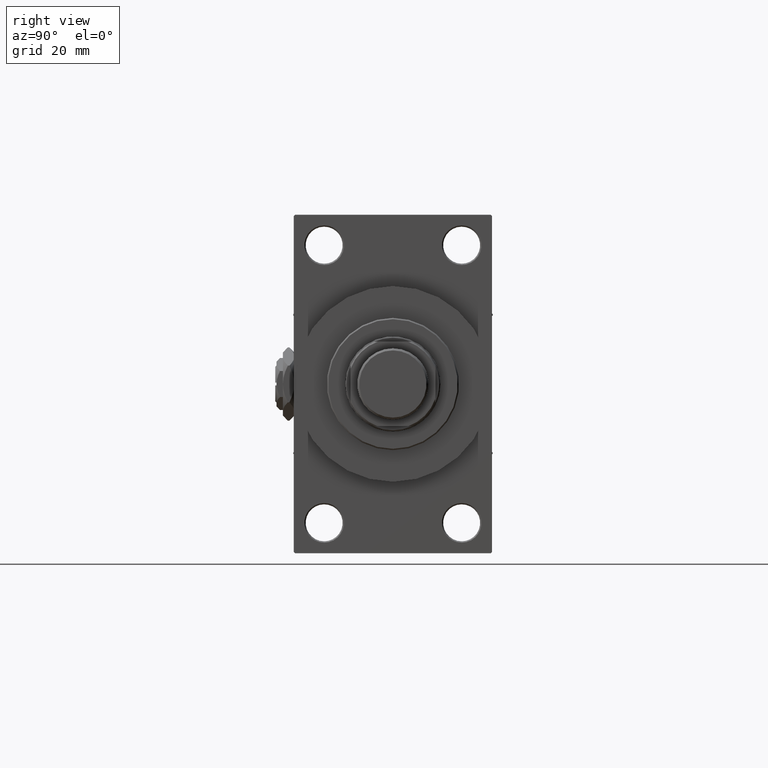
[diagram: clean part render]
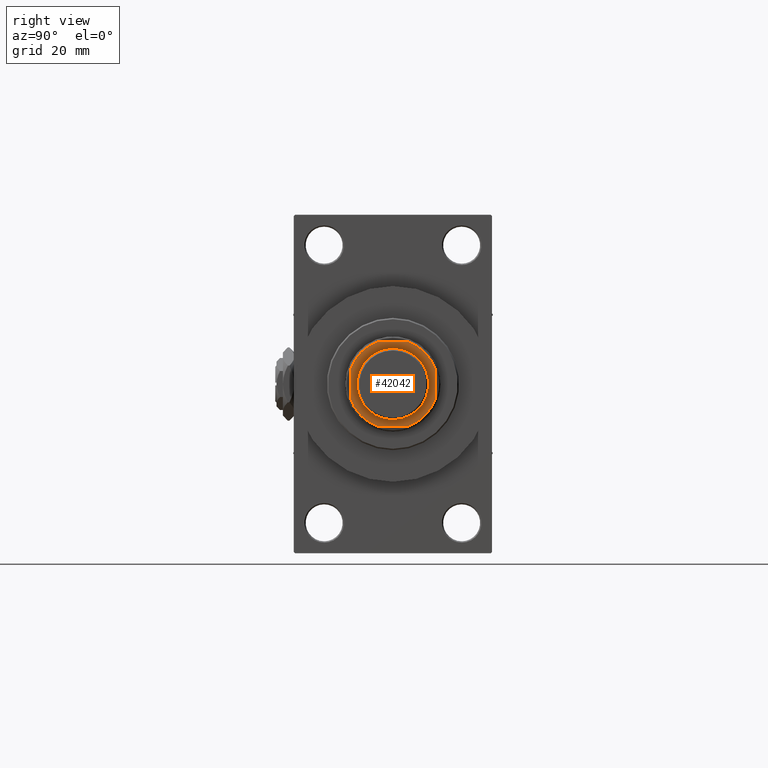
[diagram: same view with one face highlighted and labeled with its STEP entity id]
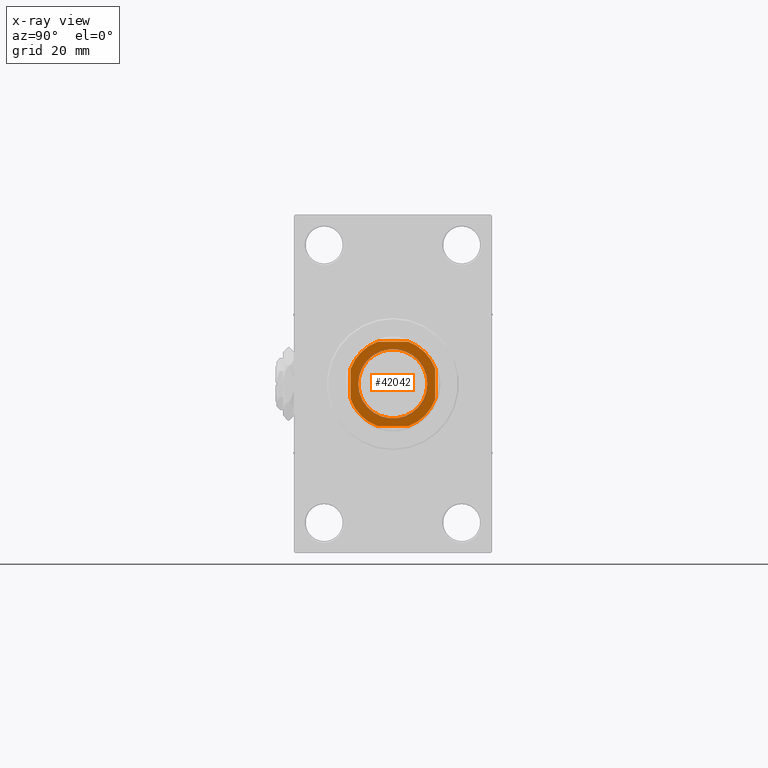
[diagram: x-ray of the same camera — body ghosted, the highlighted face saturated]
A machine part, right view. The second image highlights one B-rep face of the part: STEP entity #42042.
The next image is the same camera in x-ray: the body ghosted, the highlighted face saturated — about 11% of this face is hidden behind the body in this view.
In plain terms, the highlighted planar face has unit normal (1, 0, 0).
Its self-contained STEP definition (entity closure, byte-faithful):
#64 = CARTESIAN_POINT ( 'NONE',  ( -5.744562646538084572, 16.00000000000000000, 142.0000000000000284 ) ) ;
#850 = CARTESIAN_POINT ( 'NONE',  ( 0.000000000000000000, 0.000000000000000000, 142.0000000000000284 ) ) ;
#1281 = CARTESIAN_POINT ( 'NONE',  ( 0.000000000000000000, 0.000000000000000000, 142.0000000000000284 ) ) ;
#2486 = LINE ( 'NONE', #9057, #12441 ) ;
#2992 = DIRECTION ( 'NONE',  ( 0.000000000000000000, -1.000000000000000000, 0.000000000000000000 ) ) ;
#3475 = CARTESIAN_POINT ( 'NONE',  ( 0.000000000000000000, 0.000000000000000000, 142.0000000000000284 ) ) ;
#5814 = EDGE_CURVE ( 'NONE', #7240, #29048, #19511, .T. ) ;
#6049 = ORIENTED_EDGE ( 'NONE', *, *, #10334, .T. ) ;
#6926 = FACE_BOUND ( 'NONE', #9669, .T. ) ;
#7240 = VERTEX_POINT ( 'NONE', #35215 ) ;
#7481 = VECTOR ( 'NONE', #40549, 1000.000000000000000 ) ;
#7717 = DIRECTION ( 'NONE',  ( -0.000000000000000000, 0.000000000000000000, 1.000000000000000000 ) ) ;
#9057 = CARTESIAN_POINT ( 'NONE',  ( -16.00000000000000000, 16.00000000000000000, 142.0000000000000284 ) ) ;
#9669 = EDGE_LOOP ( 'NONE', ( #23970, #41769 ) ) ;
#10334 = EDGE_CURVE ( 'NONE', #48113, #13094, #2486, .T. ) ;
#10508 = CARTESIAN_POINT ( 'NONE',  ( -16.00000000000000000, 5.744562646538085460, 142.0000000000000284 ) ) ;
#11039 = DIRECTION ( 'NONE',  ( -0.000000000000000000, 0.000000000000000000, 1.000000000000000000 ) ) ;
#11550 = VERTEX_POINT ( 'NONE', #20064 ) ;
#12414 = EDGE_CURVE ( 'NONE', #13094, #11550, #18152, .T. ) ;
#12441 = VECTOR ( 'NONE', #2992, 1000.000000000000000 ) ;
#12964 = ORIENTED_EDGE ( 'NONE', *, *, #12414, .T. ) ;
#13094 = VERTEX_POINT ( 'NONE', #33559 ) ;
#14491 = CARTESIAN_POINT ( 'NONE',  ( 0.000000000000000000, 0.000000000000000000, 142.0000000000000284 ) ) ;
#15445 = DIRECTION ( 'NONE',  ( 1.000000000000000000, 0.000000000000000000, 0.000000000000000000 ) ) ;
#16060 = CARTESIAN_POINT ( 'NONE',  ( 13.05000000000000604, 0.000000000000000000, 142.0000000000000284 ) ) ;
#16098 = CARTESIAN_POINT ( 'NONE',  ( 0.000000000000000000, 0.000000000000000000, 142.0000000000000284 ) ) ;
#16664 = DIRECTION ( 'NONE',  ( 1.000000000000000000, 0.000000000000000000, 0.000000000000000000 ) ) ;
#17636 = EDGE_CURVE ( 'NONE', #36327, #29372, #32160, .T. ) ;
#17745 = CARTESIAN_POINT ( 'NONE',  ( 16.00000000000000000, -5.744562646538022399, 142.0000000000000284 ) ) ;
#18057 = ORIENTED_EDGE ( 'NONE', *, *, #30554, .T. ) ;
#18152 = CIRCLE ( 'NONE', #47866, 16.99999999999999645 ) ;
#18298 = VECTOR ( 'NONE', #31910, 1000.000000000000000 ) ;
#19196 = AXIS2_PLACEMENT_3D ( 'NONE', #31530, #34808, #15445 ) ;
#19506 = CARTESIAN_POINT ( 'NONE',  ( 5.744562646538032169, -15.99999999999999645, 142.0000000000000284 ) ) ;
#19511 = CIRCLE ( 'NONE', #32336, 13.05000000000000604 ) ;
#20012 = VERTEX_POINT ( 'NONE', #19506 ) ;
#20064 = CARTESIAN_POINT ( 'NONE',  ( -5.744562646538033057, -15.99999999999999645, 142.0000000000000284 ) ) ;
#21259 = CARTESIAN_POINT ( 'NONE',  ( 16.00000000000000000, 5.744562646538024175, 142.0000000000000284 ) ) ;
#21589 = LINE ( 'NONE', #33150, #24236 ) ;
#22238 = EDGE_LOOP ( 'NONE', ( #49172, #47779, #25889, #25817, #6049, #12964, #18057, #48061 ) ) ;
#23970 = ORIENTED_EDGE ( 'NONE', *, *, #46404, .T. ) ;
#24236 = VECTOR ( 'NONE', #48970, 1000.000000000000000 ) ;
#24734 = LINE ( 'NONE', #40297, #7481 ) ;
#25121 = CARTESIAN_POINT ( 'NONE',  ( -16.00000000000000000, 16.00000000000000000, 142.0000000000000284 ) ) ;
#25568 = DIRECTION ( 'NONE',  ( -0.000000000000000000, 0.000000000000000000, 1.000000000000000000 ) ) ;
#25817 = ORIENTED_EDGE ( 'NONE', *, *, #42552, .T. ) ;
#25889 = ORIENTED_EDGE ( 'NONE', *, *, #17636, .T. ) ;
#26089 = EDGE_CURVE ( 'NONE', #30236, #31843, #21589, .T. ) ;
#27980 = DIRECTION ( 'NONE',  ( -0.000000000000000000, 0.000000000000000000, 1.000000000000000000 ) ) ;
#28722 = AXIS2_PLACEMENT_3D ( 'NONE', #1281, #27980, #16664 ) ;
#29048 = VERTEX_POINT ( 'NONE', #16060 ) ;
#29372 = VERTEX_POINT ( 'NONE', #64 ) ;
#29720 = AXIS2_PLACEMENT_3D ( 'NONE', #42158, #7717, #38398 ) ;
#30236 = VERTEX_POINT ( 'NONE', #17745 ) ;
#30554 = EDGE_CURVE ( 'NONE', #11550, #20012, #24734, .T. ) ;
#31425 = DIRECTION ( 'NONE',  ( 1.000000000000000000, 0.000000000000000000, 0.000000000000000000 ) ) ;
#31530 = CARTESIAN_POINT ( 'NONE',  ( 0.000000000000000000, 0.000000000000000000, 142.0000000000000284 ) ) ;
#31843 = VERTEX_POINT ( 'NONE', #21259 ) ;
#31910 = DIRECTION ( 'NONE',  ( -1.000000000000000000, -0.000000000000000000, -0.000000000000000000 ) ) ;
#32160 = LINE ( 'NONE', #25121, #18298 ) ;
#32336 = AXIS2_PLACEMENT_3D ( 'NONE', #850, #39336, #39579 ) ;
#33050 = CARTESIAN_POINT ( 'NONE',  ( 5.744562646538022399, 16.00000000000000000, 142.0000000000000284 ) ) ;
#33150 = CARTESIAN_POINT ( 'NONE',  ( 15.99999999999999645, 16.00000000000000000, 142.0000000000000284 ) ) ;
#33559 = CARTESIAN_POINT ( 'NONE',  ( -16.00000000000000000, -5.744562646538022399, 142.0000000000000284 ) ) ;
#33596 = PLANE ( 'NONE',  #46324 ) ;
#34082 = DIRECTION ( 'NONE',  ( 1.000000000000000000, 0.000000000000000000, 0.000000000000000000 ) ) ;
#34628 = EDGE_CURVE ( 'NONE', #20012, #30236, #46181, .T. ) ;
#34808 = DIRECTION ( 'NONE',  ( 0.000000000000000000, -0.000000000000000000, -1.000000000000000000 ) ) ;
#34969 = AXIS2_PLACEMENT_3D ( 'NONE', #16098, #46515, #31425 ) ;
#35139 = CIRCLE ( 'NONE', #28722, 17.00000000000001776 ) ;
#35215 = CARTESIAN_POINT ( 'NONE',  ( -13.05000000000000604, 1.598164072887296760E-15, 142.0000000000000284 ) ) ;
#36327 = VERTEX_POINT ( 'NONE', #33050 ) ;
#38398 = DIRECTION ( 'NONE',  ( 1.000000000000000000, 0.000000000000000000, 0.000000000000000000 ) ) ;
#39286 = CIRCLE ( 'NONE', #19196, 13.05000000000000604 ) ;
#39336 = DIRECTION ( 'NONE',  ( 0.000000000000000000, -0.000000000000000000, -1.000000000000000000 ) ) ;
#39579 = DIRECTION ( 'NONE',  ( 1.000000000000000000, 0.000000000000000000, 0.000000000000000000 ) ) ;
#40297 = CARTESIAN_POINT ( 'NONE',  ( -16.00000000000000000, -15.99999999999999645, 142.0000000000000284 ) ) ;
#40549 = DIRECTION ( 'NONE',  ( 1.000000000000000000, 0.000000000000000000, 0.000000000000000000 ) ) ;
#41754 = CIRCLE ( 'NONE', #29720, 16.99999999999999645 ) ;
#41769 = ORIENTED_EDGE ( 'NONE', *, *, #5814, .T. ) ;
#42042 = ADVANCED_FACE ( 'NONE', ( #6926, #44908 ), #33596, .T. ) ;
#42158 = CARTESIAN_POINT ( 'NONE',  ( 0.000000000000000000, 0.000000000000000000, 142.0000000000000284 ) ) ;
#42552 = EDGE_CURVE ( 'NONE', #29372, #48113, #35139, .T. ) ;
#44908 = FACE_OUTER_BOUND ( 'NONE', #22238, .T. ) ;
#46181 = CIRCLE ( 'NONE', #34969, 16.99999999999999645 ) ;
#46215 = DIRECTION ( 'NONE',  ( 1.000000000000000000, 0.000000000000000000, 0.000000000000000000 ) ) ;
#46324 = AXIS2_PLACEMENT_3D ( 'NONE', #14491, #25568, #34082 ) ;
#46404 = EDGE_CURVE ( 'NONE', #29048, #7240, #39286, .T. ) ;
#46515 = DIRECTION ( 'NONE',  ( -0.000000000000000000, 0.000000000000000000, 1.000000000000000000 ) ) ;
#47779 = ORIENTED_EDGE ( 'NONE', *, *, #48809, .T. ) ;
#47866 = AXIS2_PLACEMENT_3D ( 'NONE', #3475, #11039, #46215 ) ;
#48061 = ORIENTED_EDGE ( 'NONE', *, *, #34628, .T. ) ;
#48113 = VERTEX_POINT ( 'NONE', #10508 ) ;
#48809 = EDGE_CURVE ( 'NONE', #31843, #36327, #41754, .T. ) ;
#48970 = DIRECTION ( 'NONE',  ( -1.084202172485504434E-16, 1.000000000000000000, -0.000000000000000000 ) ) ;
#49172 = ORIENTED_EDGE ( 'NONE', *, *, #26089, .T. ) ;